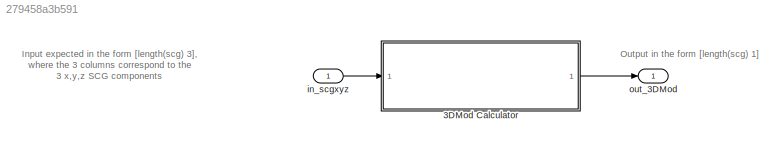
MODEL slx_279458a3b591
KIND model
CONFIG AbsTol = auto
CONFIG EnableMultiTasking = off
CONFIG FixedStep = 1/fs
CONFIG MaxStep = 1/fs
CONFIG MinStep = auto
CONFIG RelTol = 1e-3
CONFIG SampleTimeConstraint = Unconstrained
CONFIG Solver = FixedStepDiscrete
CONFIG SolverName = FixedStepDiscrete
CONFIG StartTime = 0.0
CONFIG StopTime = param_sim_time
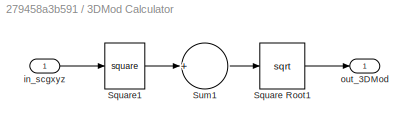
BLOCK [SubSystem] 3DMod Calculator
  Ports = [1, 1]
  RequestExecContextInheritance = off
BLOCK [Sqrt] 3DMod Calculator/Square Root1
BLOCK [Math] 3DMod Calculator/Square1
  Operator = square
  Ports = [1, 1]
BLOCK [Sum] 3DMod Calculator/Sum1
  CollapseDim = 2
  CollapseMode = Specified dimension
  InputSameDT = off
  Inputs = +
  OutDataTypeStr = Inherit: Inherit via internal rule
  Ports = [1, 1]
  SaturateOnIntegerOverflow = off
BLOCK [Inport] 3DMod Calculator/in_scgxyz
  IconDisplay = Port number
BLOCK [Outport] 3DMod Calculator/out_3DMod
  IconDisplay = Port number
BLOCK [Inport] in_scgxyz
  IconDisplay = Port number
BLOCK [Outport] out_3DMod
  IconDisplay = Port number
ANNOTATION (root): Input expected in the form [length(scg) 3], where the 3 columns correspond to the 3 x,y,z SCG components
ANNOTATION (root): Output in the form [length(scg) 1]
LINE 3DMod Calculator/Square Root1:1 -> 3DMod Calculator/out_3DMod:1
LINE 3DMod Calculator/Square1:1 -> 3DMod Calculator/Sum1:1
LINE 3DMod Calculator/Sum1:1 -> 3DMod Calculator/Square Root1:1
LINE 3DMod Calculator/in_scgxyz:1 -> 3DMod Calculator/Square1:1
LINE 3DMod Calculator:1 -> out_3DMod:1
LINE in_scgxyz:1 -> 3DMod Calculator:1
